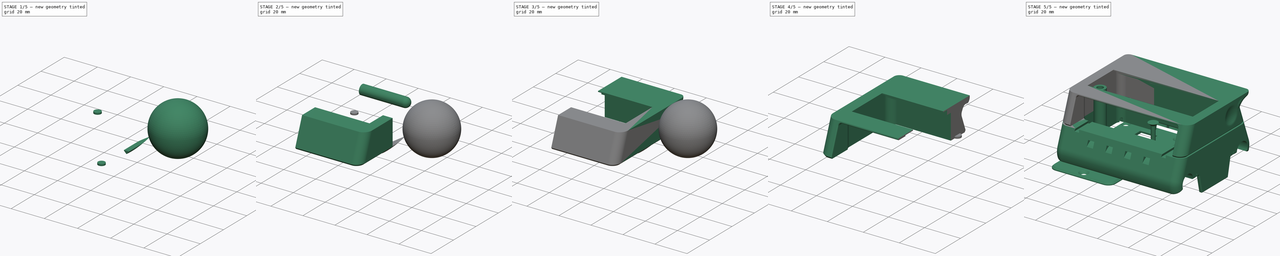
[diagram: build sequence overview — one tinted view per stage of 5, left to right]
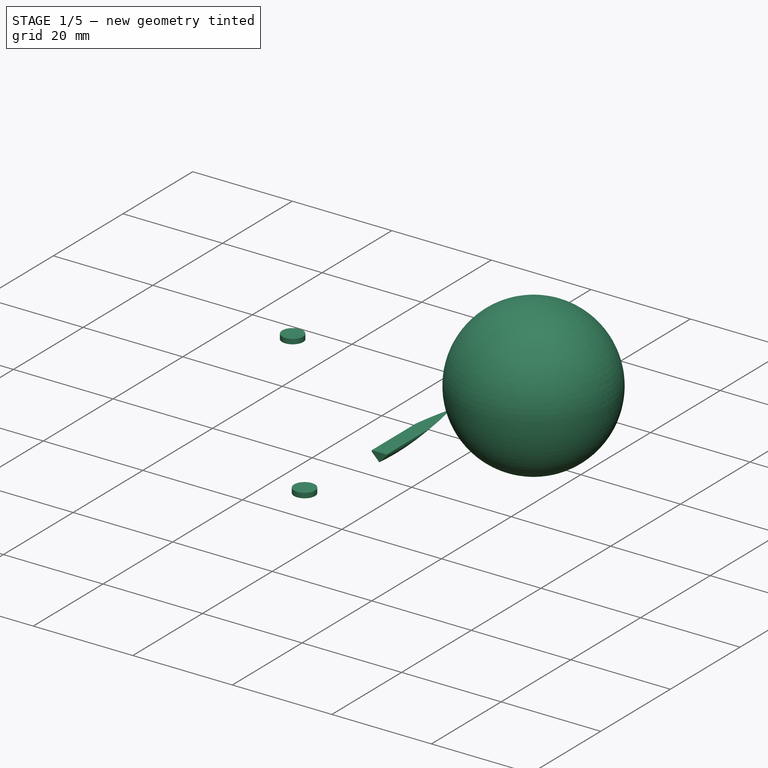
[diagram: stage 1 of 5 — iso view after this stage's code; geometry added in this stage tinted green]
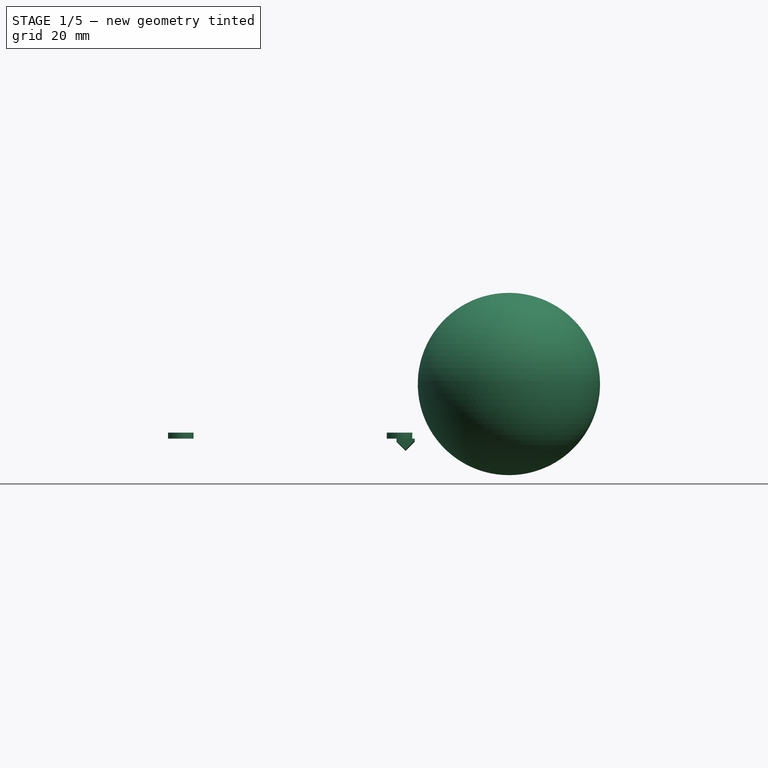
[diagram: stage 1 of 5 — front view after this stage's code; geometry added in this stage tinted green]
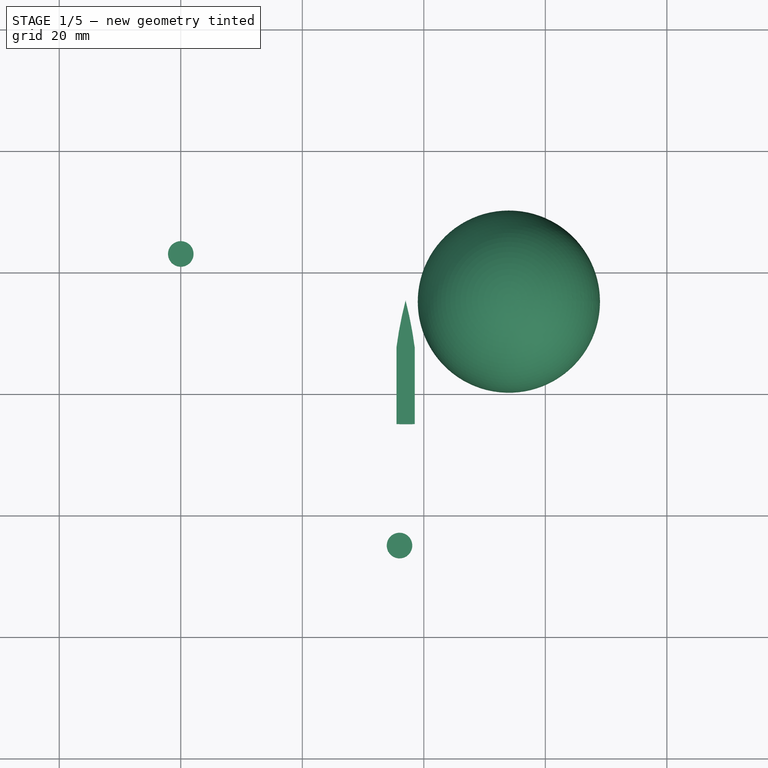
[diagram: stage 1 of 5 — top view after this stage's code; geometry added in this stage tinted green]
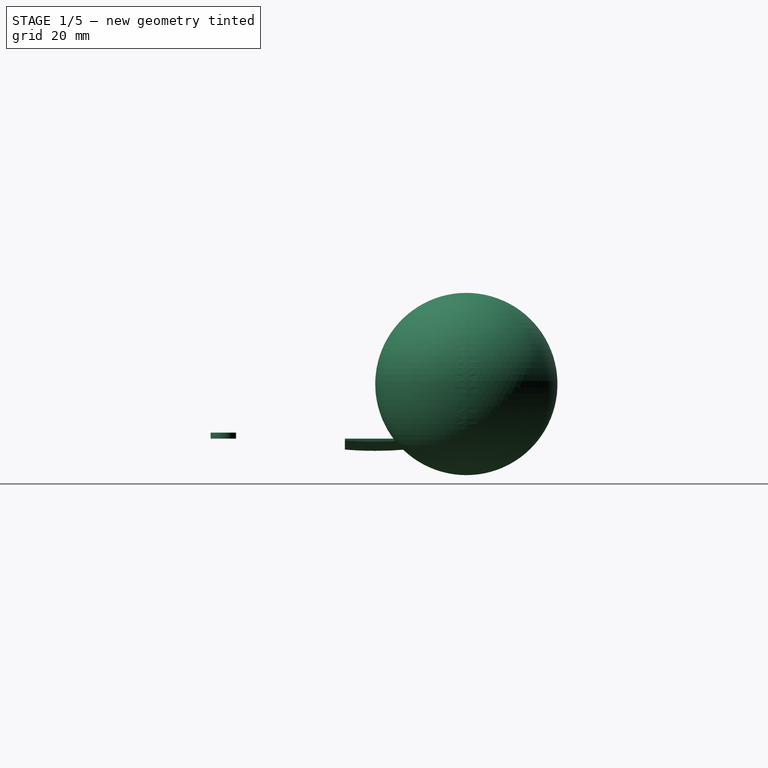
[diagram: stage 1 of 5 — right view after this stage's code; geometry added in this stage tinted green]
FCSTD DOCUMENT  (FreeCAD 0.16RUnknown)
Label: SampleTray
License: All rights reserved
LicenseURL: http://en.wikipedia.org/wiki/All_rights_reserved
objects: Part::FeaturePython×11, Sketcher::SketchObject×10, Part::Fillet×7, PartDesign::Pocket×4, Part::MultiFuse×4, Part::Cut×4, PartDesign::Pad×3, App::DocumentObjectGroup×3, PartDesign::Revolution×3, Part::Mirroring×3, Spreadsheet::Sheet×1, Part::Feature×1, Part::Chamfer×1, PartDesign::Draft×1, Part::Cylinder×1, Part::Sphere×1
note: 64 computed .brp shape members not serialized (recipe doc carries the construction recipe); baked Part::Feature solids carry a one-line shape summary decoded from their .brp

FEATURE [Part::Cylinder] Cylinder  label="Magnet"
  Angle = 360
  Height = 1
  Radius = 2.1
  expr: Radius = 2 + pars.CilLoose
FEATURE [Part::FeaturePython] Clone003  label="Clone of Magnet001"  # Draft clone (typed FeaturePython)
  Objects = -> [Cylinder]
  Placement = pos=(36,-25,0) rot=(0,0,1;0rad)
  Scale = (1,1,1)
FEATURE [Sketcher::SketchObject] Sketch024  label="SliderGrooveProfile"
  Placement = pos=(0,0,0) rot=(1,0,0;1.5708rad)
  sketch-geometry (4):
    g0: LineSegment StartX=0 StartY=0 StartZ=0 EndX=0 EndY=-60 EndZ=0
    g1: LineSegment StartX=0 StartY=-60 StartZ=0 EndX=1.5 EndY=-58.5 EndZ=0
    g2: LineSegment StartX=1.5 StartY=-58.5 StartZ=0 EndX=1.5 EndY=0 EndZ=0
    g3: LineSegment StartX=1.5 StartY=0 StartZ=0 EndX=0 EndY=0 EndZ=0
  constraints (11):
    c: Coincident(g1,g2)
    c: Coincident(g2,g3)
    c: Coincident(g3,g0)
    c: Horizontal(g3)
    c: Vertical(g0)
    c: Coincident(g0,g-1)
    c: Vertical(g2)
    c: Coincident(g1,g0)
    c: Angle(g1,g0) = 0.785398
    c: DistanceY(g0,g0) = 60
    c: DistanceX(g3,g3) = 1.5
FEATURE [PartDesign::Revolution] Revolution002  label="HalfSlider"
  Angle = 360
  Axis = (1,0,0)
  Base = (0,0,0)
  Placement = pos=(0,0,0) rot=(1,0,0;1.5708rad)
  ReferenceAxis = -> Sketch024 [H_Axis]
  Reversed = true
  Sketch = -> Sketch024
FEATURE [Part::Mirroring] Part__Mirroring006  label="HalfSlider (Mirror #4)"
  Base = (0,0,0)
  Normal = (1,0,0)
  Source = -> Revolution002
FEATURE [Part::MultiFuse] Fusion001  label="SliderCircle"
  Shapes = -> [Part__Mirroring006,Revolution002]
FEATURE [Sketcher::SketchObject] Sketch025  label="SlGrUpperCut"
  Placement = pos=(-1.5,0,0) rot=(0.57735,-0.57735,-0.57735;2.0944rad)
  Support = -> Fusion001 [Face1]
  sketch-geometry (6):
    g0: LineSegment StartX=-100 StartY=100 StartZ=0 EndX=100 EndY=100 EndZ=0
    g1: LineSegment StartX=100 StartY=100 StartZ=0 EndX=100 EndY=-58 EndZ=0
    g2: LineSegment StartX=100 StartY=-58 StartZ=0 EndX=-5 EndY=-58 EndZ=0
    g3: LineSegment StartX=-100 StartY=-66 StartZ=0 EndX=-100 EndY=100 EndZ=0
    g4: LineSegment StartX=-100 StartY=-66 StartZ=0 EndX=-5 EndY=-66 EndZ=0
    g5: LineSegment StartX=-5 StartY=-66 StartZ=0 EndX=-5 EndY=-58 EndZ=0
  constraints (18):
    c: Coincident(g0,g1)
    c: Coincident(g1,g2)
    c: Coincident(g3,g0)
    c: Horizontal(g0)
    c: Horizontal(g2)
    c: Vertical(g1)
    c: Vertical(g3)
    c: DistanceY(g0) = 100
    c: DistanceY(g1) = -58
    c: Coincident(g4,g5)
    c: Symmetric(g0,g0,g-2)
    c: DistanceX(g0,g0) = 200
    c: Coincident(g5,g2)
    c: Coincident(g3,g4)
    c: Horizontal(g4)
    c: Vertical(g5)
    c: DistanceX(g2) = -5
    c: DistanceY(g5,g5) = 8
FEATURE [PartDesign::Pocket] Pocket008003002  label="SliderGroove"
  Length = 5
  Sketch = -> Sketch025
  Type = 0
FEATURE [App::DocumentObjectGroup] Group002  label="Component_src"
  Group = -> [Revolution,Revolution001,Cylinder,Fusion001,Pocket008003002]
FEATURE [Part::FeaturePython] Clone029003  label="Clone of SliderGroove"  # Draft clone (typed FeaturePython)
  Objects = -> [Pocket008003002]
  Placement = pos=(37,0,58) rot=(0,0,1;3.14159rad)
  Scale = (1,1,1)
FEATURE [Part::Sphere] Sphere  label="FingerSphere"
  Angle1 = -90
  Angle2 = 90
  Angle3 = 360
  Placement = pos=(54,15,9) rot=(0,0,1;0rad)
  Radius = 15
FEATURE [Part::FeaturePython] Clone029004  label="Clone of Magnet"  # Draft clone (typed FeaturePython)
  Objects = -> [Cylinder]
  Placement = pos=(0,23,0) rot=(0,0,1;0rad)
  Scale = (1,1,1)
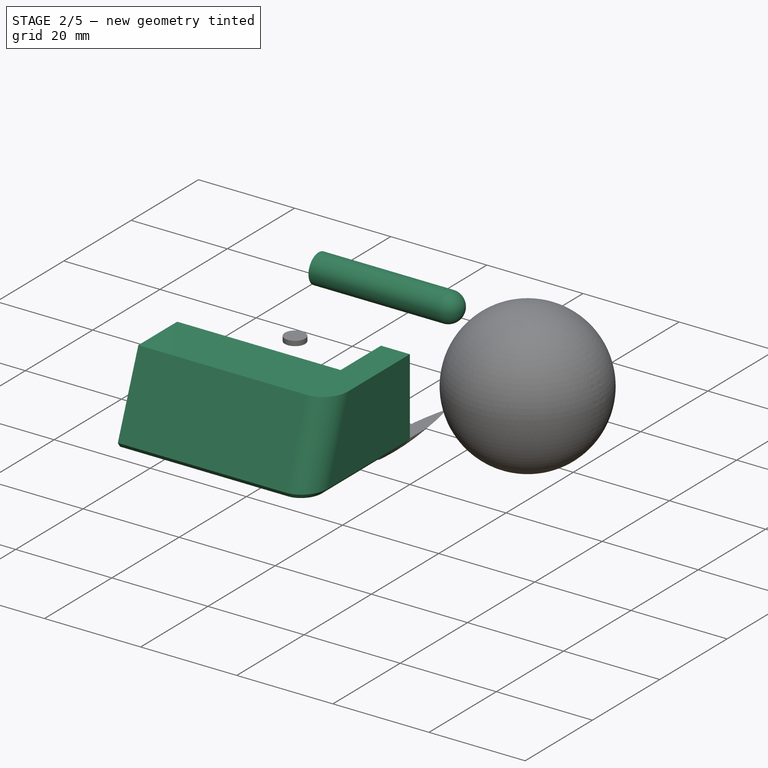
[diagram: stage 2 of 5 — iso view after this stage's code; geometry added in this stage tinted green]
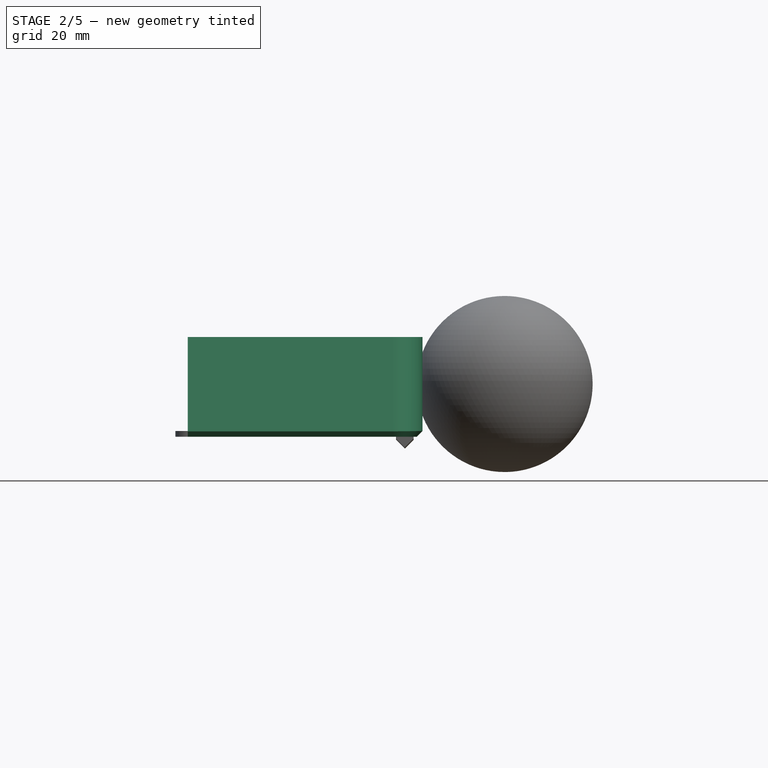
[diagram: stage 2 of 5 — front view after this stage's code; geometry added in this stage tinted green]
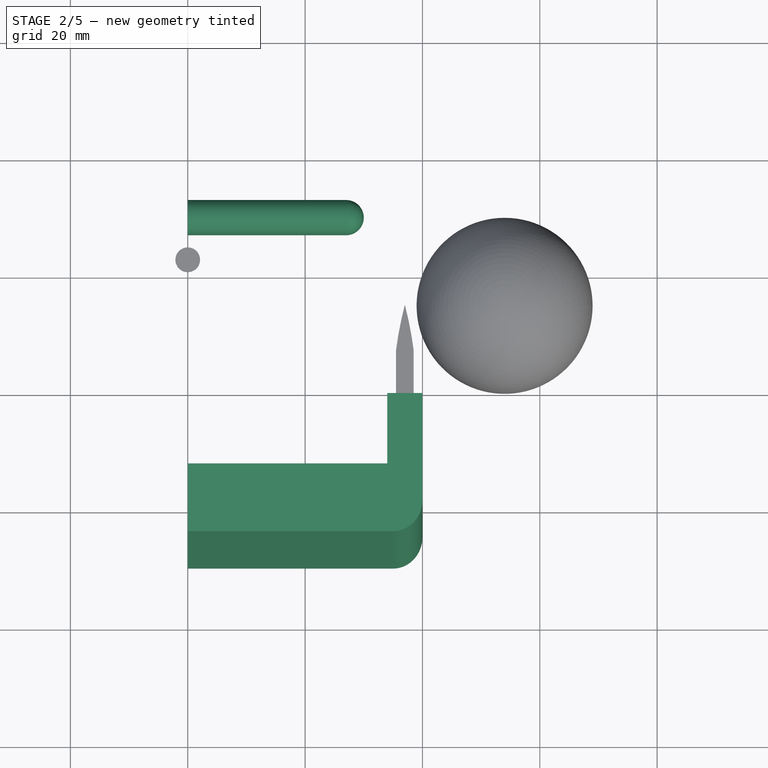
[diagram: stage 2 of 5 — top view after this stage's code; geometry added in this stage tinted green]
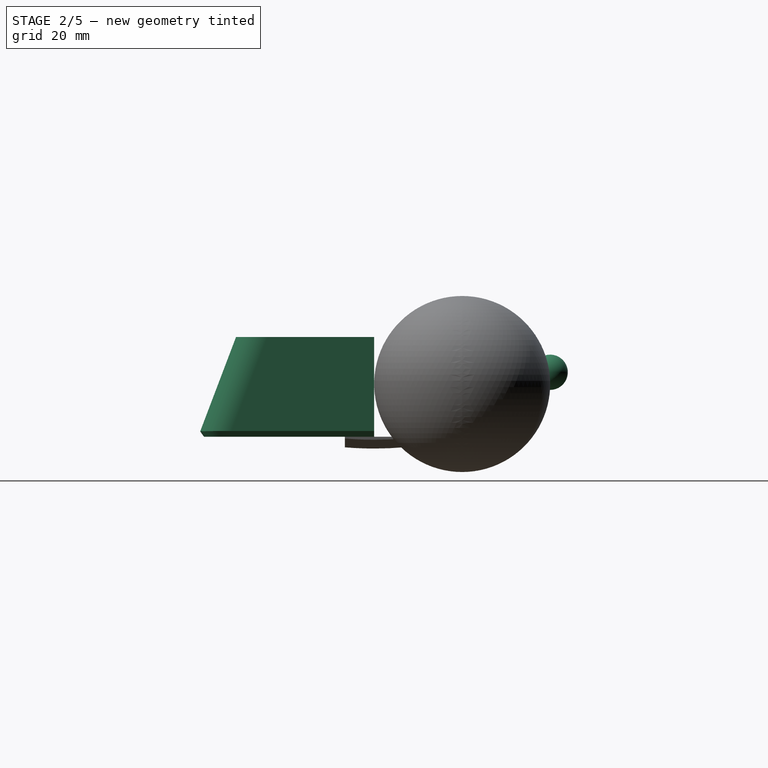
[diagram: stage 2 of 5 — right view after this stage's code; geometry added in this stage tinted green]
FEATURE [Sketcher::SketchObject] Sketch  label="Base"
  Placement = pos=(0,0,0) rot=(0.57735,0.57735,0.57735;2.0944rad)
  sketch-geometry (10):
    g0: LineSegment [constr] StartX=0 StartY=0 StartZ=0 EndX=-30 EndY=0 EndZ=0
    g1: LineSegment [constr] StartX=-30 StartY=0 StartZ=0 EndX=-34.3485 EndY=-11.4495 EndZ=0
    g2: LineSegment [constr] StartX=0 StartY=0 StartZ=0 EndX=0 EndY=-15 EndZ=0
    g3: LineSegment [constr] StartX=0 StartY=-15 StartZ=0 EndX=-25 EndY=-15 EndZ=0
    g4: LineSegment [constr] StartX=-25 StartY=-15 StartZ=0 EndX=-33.6603 EndY=-20 EndZ=0
    g5: ArcOfCircle [constr] CenterX=-25 CenterY=-15 CenterZ=0 NormalX=0 NormalY=0 NormalZ=1 Radius=10 StartAngle=2.77862 EndAngle=3.66519
    g6: LineSegment StartX=-30 StartY=0 StartZ=0 EndX=-23.5435 EndY=17 EndZ=0
    g7: LineSegment StartX=-23.5435 StartY=17 StartZ=0 EndX=0 EndY=17 EndZ=0
    g8: LineSegment StartX=0 StartY=17 StartZ=0 EndX=0 EndY=0 EndZ=0
    g9: LineSegment StartX=0 StartY=0 StartZ=0 EndX=-30 EndY=0 EndZ=0
  constraints (28):
    c: Coincident(g0,g1)
    c: Coincident(g2,g3)
    c: Coincident(g3,g4)
    c: Horizontal(g3)
    c: Horizontal(g0)
    c: Vertical(g2)
    c: Coincident(g2,g-1)
    c: Coincident(g5,g3)
    c: Coincident(g5,g1)
    c: Coincident(g5,g4)
    c: Tangent(g5,g1)
    c: Coincident(g-1,g0)
    c: DistanceX(g3) = -25
    c: DistanceY(g3) = -15
    c: Distance(g4) = 10
    c: Angle(g4) = -2.61799
    c: Angle(g1) = -1.93376
    c: Coincident(g6,g7)
    c: Coincident(g7,g8)
    c: Coincident(g8,g9)
    c: Coincident(g9,g6)
    c: Horizontal(g9)
    c: Horizontal(g7)
    c: Vertical(g8)
    c: Coincident(g8,g-1)
    c: Coincident(g6,g0)
    c: PointOnObject(g6,g1)
    c: DistanceY(g7) = 17
FEATURE [PartDesign::Pad] Pad  label="Base001"
  Length = 40
  Length2 = 100
  Placement = pos=(0,0,0) rot=(0.57735,0.57735,0.57735;2.0944rad)
  Sketch = -> Sketch
  Type = 0
FEATURE [Part::Fillet] Fillet  label="BaseFillet"
  Base = -> Pad
  Edges = 1 edges r=5: [Edge4]
FEATURE [Sketcher::SketchObject] Sketch001  label="LightSpace"
  Placement = pos=(0,0,17) rot=(0,0,1;0rad)
  Support = -> Fillet [Face5]
  sketch-geometry (4):
    g0: LineSegment StartX=-1 StartY=1 StartZ=0 EndX=34 EndY=1 EndZ=0
    g1: LineSegment StartX=34 StartY=1 StartZ=0 EndX=34 EndY=-18 EndZ=0
    g2: LineSegment StartX=34 StartY=-18 StartZ=0 EndX=-1 EndY=-18 EndZ=0
    g3: LineSegment StartX=-1 StartY=-18 StartZ=0 EndX=-1 EndY=1 EndZ=0
  constraints (12):
    c: Coincident(g0,g1)
    c: Coincident(g1,g2)
    c: Coincident(g2,g3)
    c: Coincident(g3,g0)
    c: Horizontal(g0)
    c: Horizontal(g2)
    c: Vertical(g1)
    c: Vertical(g3)
    c: DistanceX(g0) = -1
    c: DistanceY(g0) = 1
    c: DistanceX(g1) = 34
    c: DistanceY(g1) = -18
FEATURE [PartDesign::Pocket] Pocket  label="LightSpace001"
  Length = 5
  Sketch = -> Sketch001
  Type = 1
FEATURE [Part::Fillet] Fillet001  label="LightSpaceFillet"
  Base = -> Pocket
  Edges = 1 edges r=4: [Edge21]
FEATURE [App::DocumentObjectGroup] Group  label="Reference"
  Group = -> [Xcarriage_01001,Xcarriage_01,TubeLid_step1_01]
FEATURE [Part::Chamfer] Chamfer  label="FitChamfer"
  Base = -> Fillet001
  Edges = 1 edges r=1: [Edge8]
FEATURE [Sketcher::SketchObject] Sketch002  label="AntiFall"
  Placement = pos=(0,0,17) rot=(0,0,1;0rad)
  Support = -> Chamfer [Face11]
  sketch-geometry (4):
    g0: LineSegment StartX=0 StartY=-12 StartZ=0 EndX=35 EndY=-12 EndZ=0
    g1: LineSegment StartX=35 StartY=-12 StartZ=0 EndX=35 EndY=-21 EndZ=0
    g2: LineSegment StartX=35 StartY=-21 StartZ=0 EndX=0 EndY=-21 EndZ=0
    g3: LineSegment StartX=0 StartY=-21 StartZ=0 EndX=0 EndY=-12 EndZ=0
  constraints (12):
    c: Coincident(g0,g1)
    c: Coincident(g1,g2)
    c: Coincident(g2,g3)
    c: Coincident(g3,g0)
    c: Horizontal(g0)
    c: Horizontal(g2)
    c: Vertical(g1)
    c: Vertical(g3)
    c: PointOnObject(g0,g-2)
    c: DistanceY(g0) = -12
    c: DistanceX(g1) = 35
    c: DistanceY(g1) = -21
FEATURE [PartDesign::Pad] Pad001  label="AntiFall001"
  Length = 0.5
  Length2 = 100
  Reversed = true
  Sketch = -> Sketch002
  Type = 0
FEATURE [Sketcher::SketchObject] Sketch005  label="ThumbSpaceProfile"
  Placement = pos=(0,0,0) rot=(1,0,0;1.5708rad)
  sketch-geometry (4):
    g0: ArcOfCircle CenterX=27 CenterY=0 CenterZ=0 NormalX=0 NormalY=0 NormalZ=1 Radius=3 StartAngle=0 EndAngle=1.5708
    g1: LineSegment StartX=27 StartY=3 StartZ=0 EndX=0 EndY=3 EndZ=0
    g2: LineSegment StartX=0 StartY=3 StartZ=0 EndX=0 EndY=0 EndZ=0
    g3: LineSegment StartX=0 StartY=0 StartZ=0 EndX=30 EndY=0 EndZ=0
  constraints (12):
    c: Coincident(g1,g2)
    c: Coincident(g2,g3)
    c: Coincident(g3,g0)
    c: PointOnObject(g0,g3)
    c: Coincident(g0,g1)
    c: Horizontal(g1)
    c: Horizontal(g3)
    c: Vertical(g2)
    c: Coincident(g2,g-1)
    c: Tangent(g0,g1)
    c: DistanceX(g3,g3) = 30
    c: Radius(g0) = 3
FEATURE [PartDesign::Revolution] Revolution001  label="ThumbSpace"
  Angle = 360
  Axis = (1,0,0)
  Base = (0,0,0)
  Placement = pos=(0,0,0) rot=(1,0,0;1.5708rad)
  ReferenceAxis = -> Sketch005 [H_Axis]
  Sketch = -> Sketch005
FEATURE [Part::FeaturePython] Clone001  label="Clone of ThumbSpace"  # Draft clone (typed FeaturePython)
  Objects = -> [Revolution001]
  Placement = pos=(0,30,11) rot=(1,0,0;1.5708rad)
  Scale = (1,1,1)
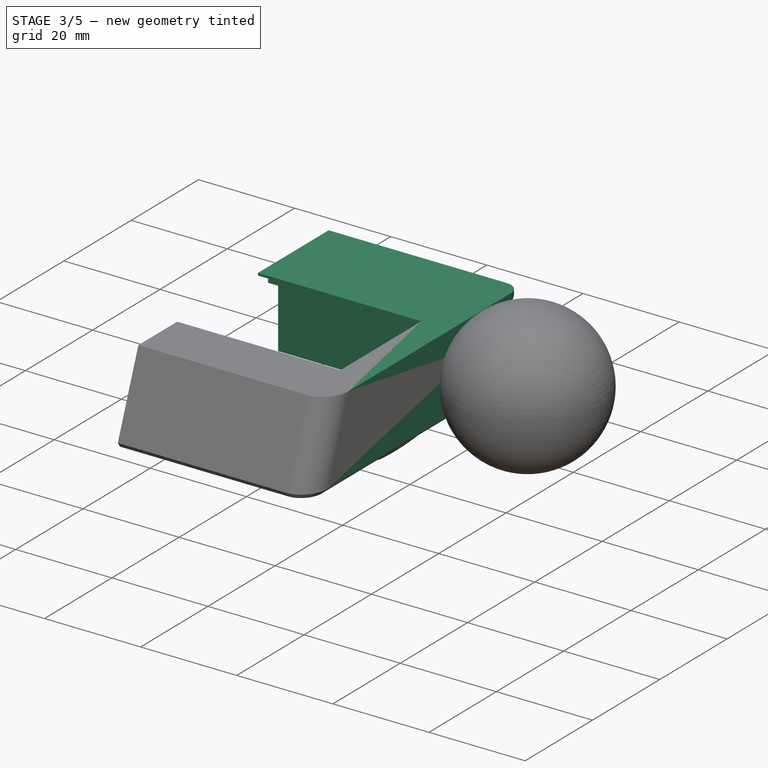
[diagram: stage 3 of 5 — iso view after this stage's code; geometry added in this stage tinted green]
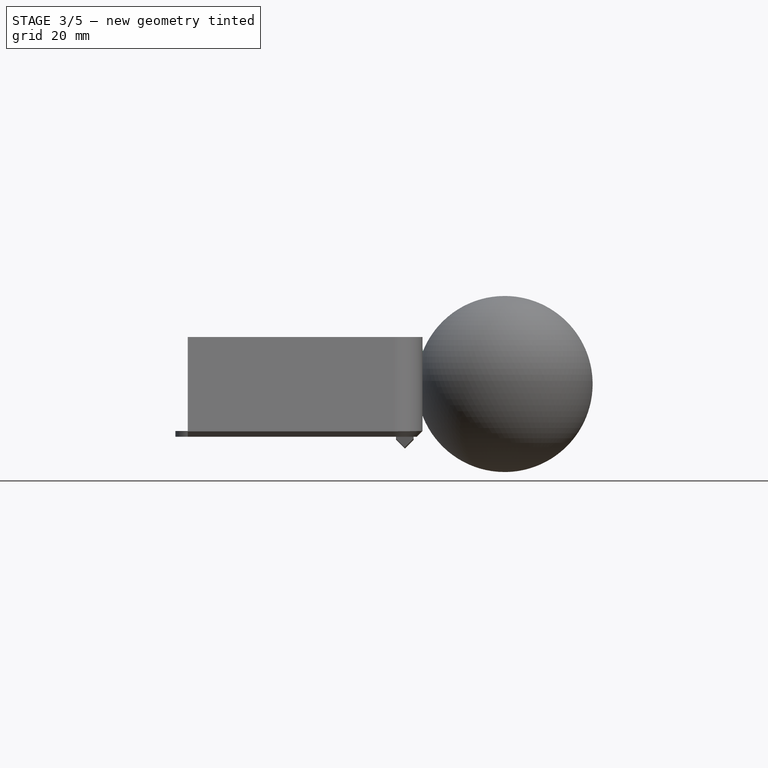
[diagram: stage 3 of 5 — front view after this stage's code; geometry added in this stage tinted green]
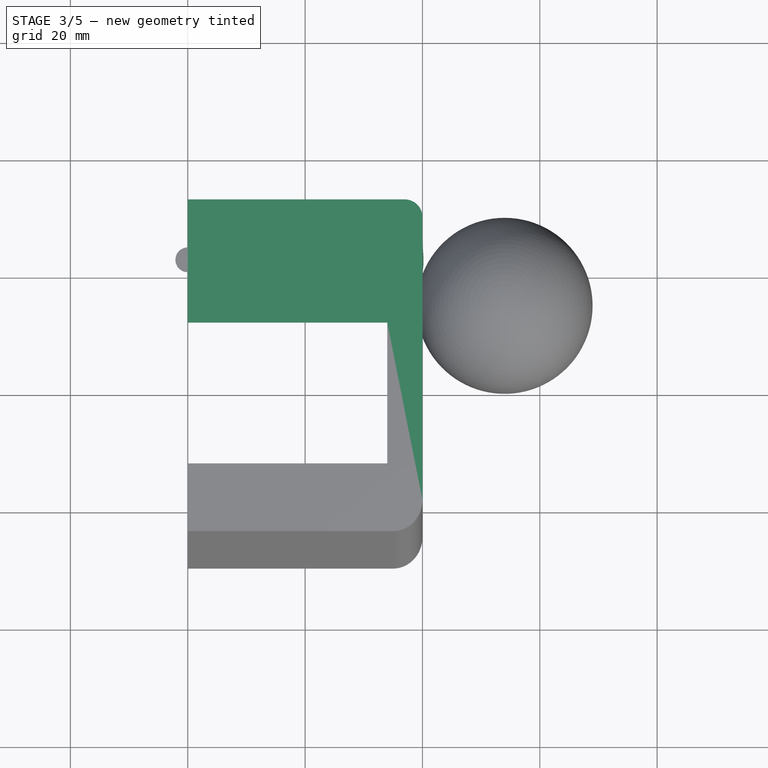
[diagram: stage 3 of 5 — top view after this stage's code; geometry added in this stage tinted green]
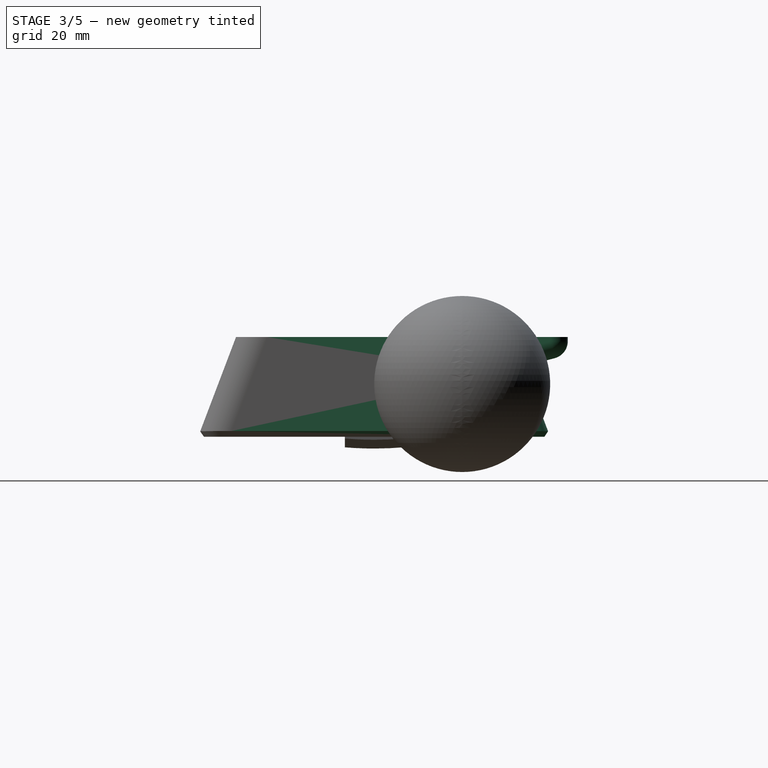
[diagram: stage 3 of 5 — right view after this stage's code; geometry added in this stage tinted green]
FEATURE [Part::FeaturePython] refine  label="refine_AntiFall001"  # WARN: FeaturePython — macro-defined, semantics opaque (R4)
  Base = -> Pad001
FEATURE [Part::Mirroring] Part__Mirroring  label="refine_AntiFall001 (Mirror #1)"
  Base = (0,0,0)
  Normal = (0,1,0)
  Source = -> refine
FEATURE [Part::MultiFuse] Fusion  label="FrontMirror"
  Shapes = -> [refine,Part__Mirroring]
FEATURE [Part::FeaturePython] refine001  label="refine_FrontMirror"  # WARN: FeaturePython — macro-defined, semantics opaque (R4)
  Base = -> Fusion
FEATURE [Sketcher::SketchObject] Sketch004  label="Holder"
  Placement = pos=(0,0,17) rot=(0,0,1;0rad)
  Support = -> refine001 [Face21]
  sketch-geometry (4):
    g0: LineSegment StartX=0 StartY=33 StartZ=0 EndX=40 EndY=33 EndZ=0
    g1: LineSegment StartX=40 StartY=33 StartZ=0 EndX=40 EndY=15 EndZ=0
    g2: LineSegment StartX=40 StartY=15 StartZ=0 EndX=0 EndY=15 EndZ=0
    g3: LineSegment StartX=0 StartY=15 StartZ=0 EndX=0 EndY=33 EndZ=0
  constraints (12):
    c: Coincident(g0,g1)
    c: Coincident(g1,g2)
    c: Coincident(g2,g3)
    c: Coincident(g3,g0)
    c: Vertical(g3)
    c: Horizontal(g0)
    c: Horizontal(g2)
    c: PointOnObject(g0,g-2)
    c: DistanceY(g0) = 33
    c: DistanceX(g0,g0) = 40
    c: DistanceY(g2) = 15
    c: Vertical(g1)
FEATURE [PartDesign::Pad] Pad002  label="Holder001"
  Length = 3
  Length2 = 100
  Reversed = true
  Sketch = -> Sketch004
  Type = 0
FEATURE [Part::FeaturePython] refine002  label="refine_Holder001"  # WARN: FeaturePython — macro-defined, semantics opaque (R4)
  Base = -> Pad002
FEATURE [PartDesign::Draft] Draft  label="HolderDraft"
  Angle = 15
  Base = -> refine002 [Face2]
  NeutralPlane = -> refine002 [Face1]
  Reversed = true
FEATURE [Part::Fillet] Fillet002  label="HolderFillet"
  Base = -> Draft
  Edges = 5 edges r=3: [Edge2,Edge4,Edge6,Edge7,Edge8]
FEATURE [Part::Cut] Cut  label="ThumbSpaceCut"
  Base = -> Fillet002
  Tool = -> Clone001
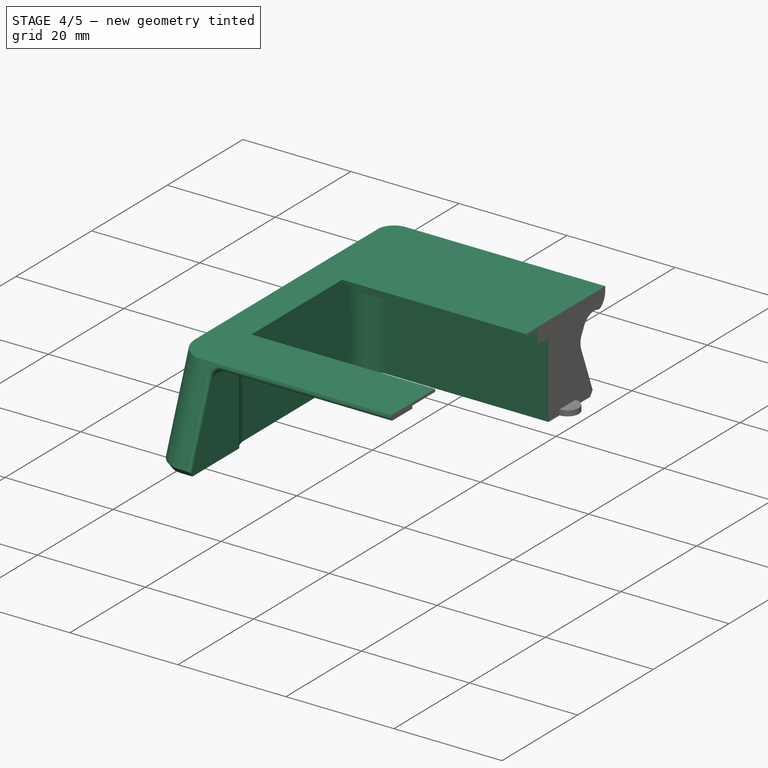
[diagram: stage 4 of 5 — iso view after this stage's code; geometry added in this stage tinted green]
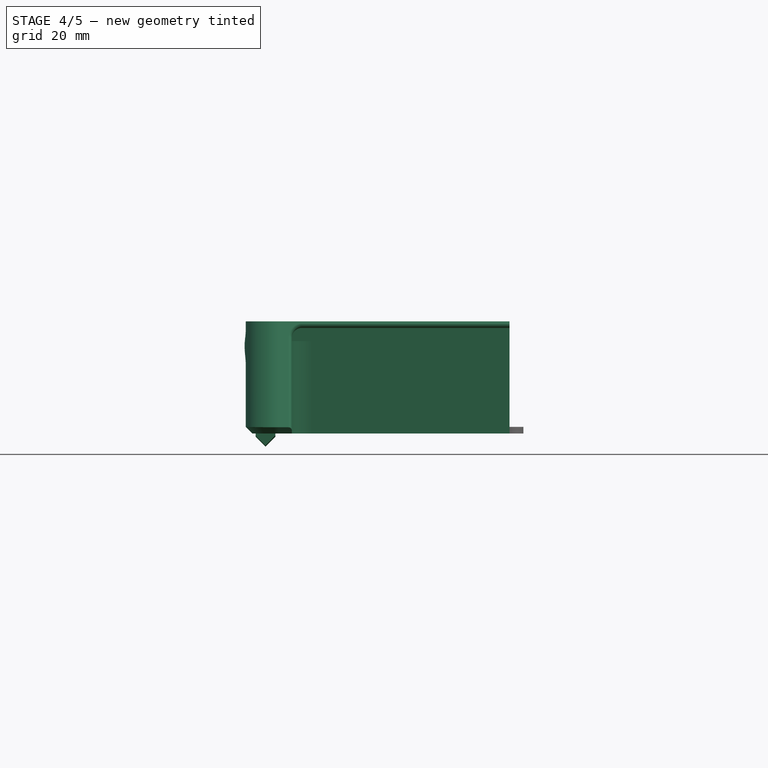
[diagram: stage 4 of 5 — front view after this stage's code; geometry added in this stage tinted green]
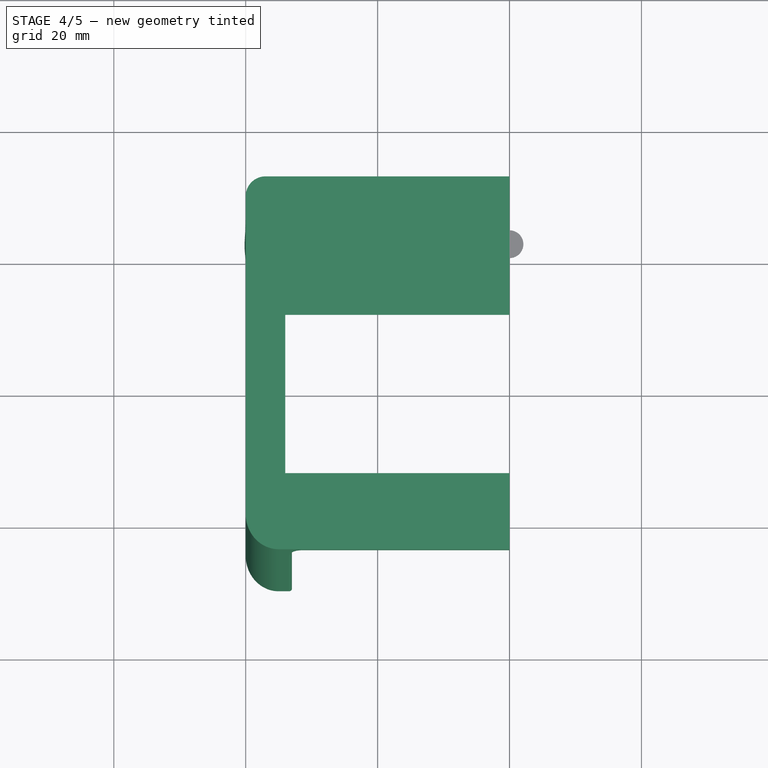
[diagram: stage 4 of 5 — top view after this stage's code; geometry added in this stage tinted green]
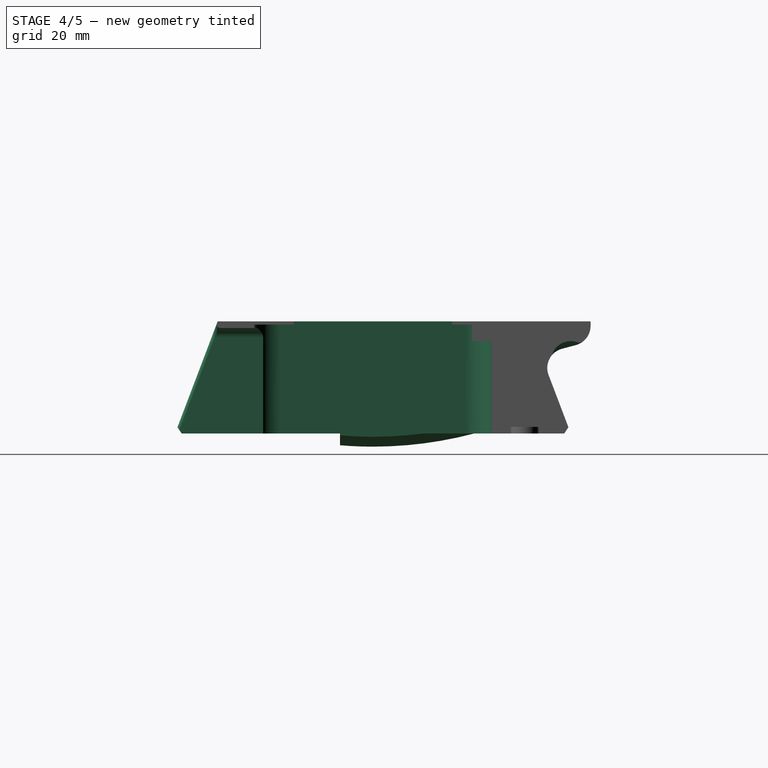
[diagram: stage 4 of 5 — right view after this stage's code; geometry added in this stage tinted green]
FEATURE [Part::Fillet] Fillet003  label="ThumbSpaceFillet"
  Base = -> Cut
  Edges = 1 edges r=1: [Edge21]
FEATURE [Part::Cut] Cut002  label="MagnetCut001"
  Base = -> Fillet003
  Tool = -> Clone003
FEATURE [Part::MultiFuse] Fusion004  label="SlideGroove"
  Shapes = -> [Cut002,Clone029003]
FEATURE [Sketcher::SketchObject] Sketch026  label="LightTubeSpace"
  Placement = pos=(0,-18,0) rot=(0,0.707107,0.707107;3.14159rad)
  Support = -> Fusion004 [Face13]
  sketch-geometry (5):
    g0: LineSegment StartX=1 StartY=-1 StartZ=0 EndX=-33 EndY=-1 EndZ=0
    g1: LineSegment StartX=-33 StartY=-1 StartZ=0 EndX=-33 EndY=14.5 EndZ=0
    g2: LineSegment StartX=-31.5 StartY=16 StartZ=0 EndX=1 EndY=16 EndZ=0
    g3: LineSegment StartX=1 StartY=16 StartZ=0 EndX=1 EndY=-1 EndZ=0
    g4: ArcOfCircle CenterX=-31.5 CenterY=14.5 CenterZ=0 NormalX=0 NormalY=0 NormalZ=1 Radius=1.5 StartAngle=1.5708 EndAngle=3.14159
  constraints (14):
    c: Coincident(g0,g1)
    c: Coincident(g2,g3)
    c: Coincident(g3,g0)
    c: Horizontal(g0)
    c: Horizontal(g2)
    c: Vertical(g1)
    c: Vertical(g3)
    c: DistanceY(g0) = -1
    c: DistanceX(g0) = 1
    c: Tangent(g1,g4) = 1.5708
    c: Tangent(g2,g4) = 1.5708
    c: DistanceY(g2) = 16
    c: DistanceX(g0) = -33
    c: Radius(g4) = 1.5
FEATURE [PartDesign::Pocket] Pocket008003003  label="LightTubeSpace001"
  Length = 30
  Midplane = true
  Sketch = -> Sketch026
  Type = 0
FEATURE [Part::Fillet] Fillet004  label="LightSpaceFillet001"
  Base = -> Pocket008003003
  Edges = 1 edges r=0.5: [Edge94]
FEATURE [Part::Cut] Cut003  label="FingerCut"
  Base = -> Fillet004
  Tool = -> Sphere
FEATURE [Part::Fillet] Fillet006  label="FingerFillet"
  Base = -> Cut003
  Edges = 1 edges r=4: [Edge109]
FEATURE [Part::Mirroring] Part__Mirroring008  label="FingerFillet (Mirror #4)"
  Base = (0,0,0)
  Normal = (1,0,0)
  Source = -> Fillet006
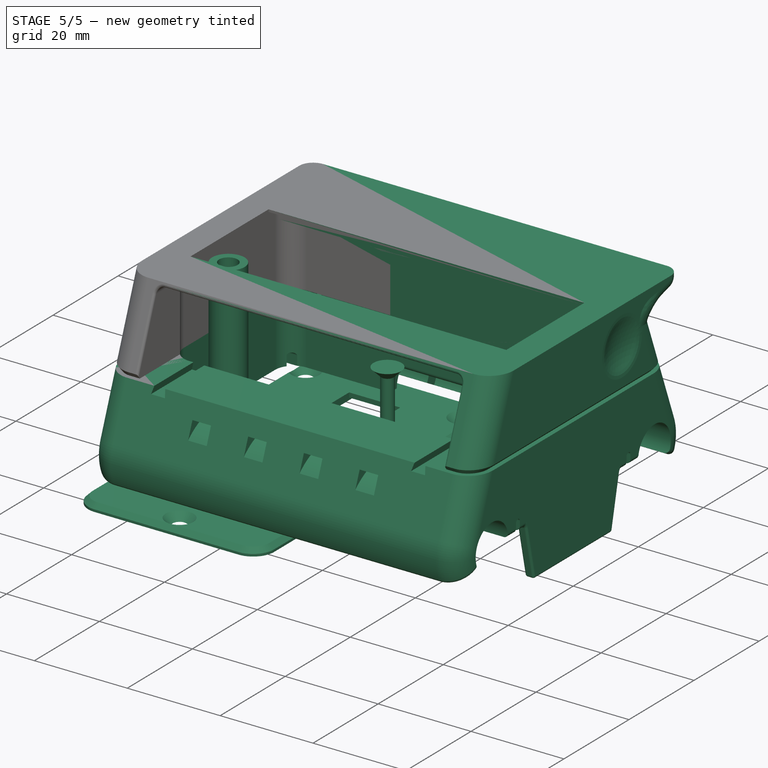
[diagram: stage 5 of 5 — iso view after this stage's code; geometry added in this stage tinted green]
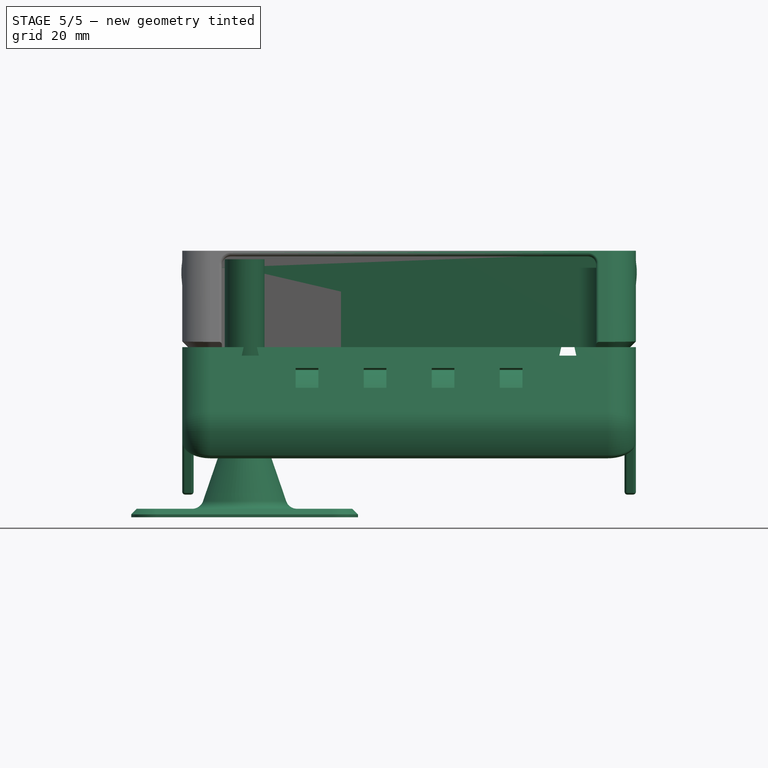
[diagram: stage 5 of 5 — front view after this stage's code; geometry added in this stage tinted green]
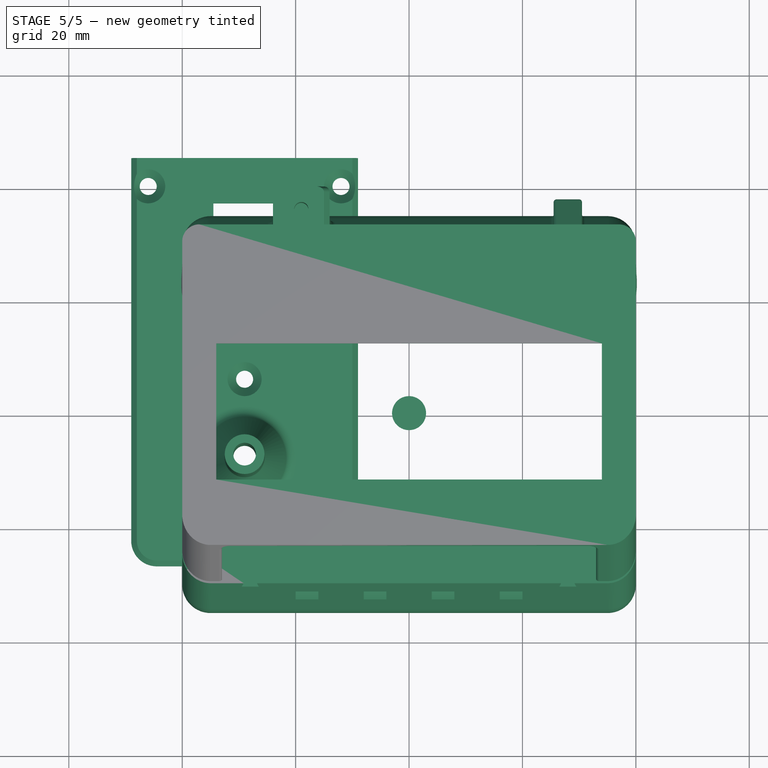
[diagram: stage 5 of 5 — top view after this stage's code; geometry added in this stage tinted green]
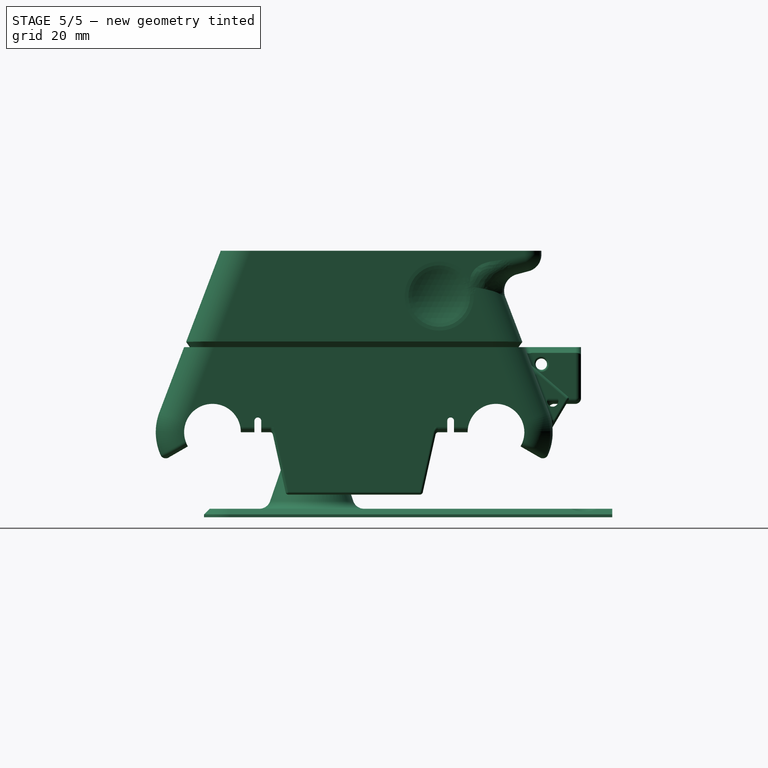
[diagram: stage 5 of 5 — right view after this stage's code; geometry added in this stage tinted green]
FEATURE [Spreadsheet::Sheet] Spreadsheet  label="pars"
  cells = A1=Bolts and Nuts; B1=Value; D1=Components; E1=Value; A2=Thread Tight Tolerance (Radius, ratio); B2(ThrTighRatio)=0.96; D2=Tight Cilinder Tolerances (Radius, mm); E2(CilTight)=0.1; A3=Thread Tight Tolerance (Radius, mm); B3(ThrTightmm)=0.15; D3=Loose Cilinder Tolerances (Radius, mm); E3(CilLoose)=0.1; A5=Nut Slot Width Clearance (mm); B5(NutWidthClearmm)=0.1; A6=Nut Slot Thickess Clearance (mm); B6(NutThickClearmm)=0.1; A13=Particular parameters; B13=Value; A14=Groove tolerance; B14(grovTol)=0.1
FEATURE [Part::Feature] Xcarriage_01001  label="Xcarriage001"
  Placement = pos=(0,0,-25) rot=(0,0,1;0rad)
  shape: bbox 81.03 x 70.59 x 44.59 mm, 241 faces (baked)
FEATURE [Part::FeaturePython] Xcarriage_01  label="Xcarriage"  # a2plus imported part (geometry in sourceFile) (typed FeaturePython)
  fixedPosition = true
  sourceFile = ./Xcarriage.fcstd
  timeLastImport = 1.52952e+09
  updateColors = true
FEATURE [Part::FeaturePython] TubeLid_step1_01  label="TubeLid"  # a2plus imported part (geometry in sourceFile) (typed FeaturePython)
  Placement = pos=(-29,-7.5,-30) rot=(0,0,1;0rad)
  fixedPosition = false
  sourceFile = ./../../../Step/Printed/MainFrame/TubeLid.step
  timeLastImport = 1.52166e+09
  updateColors = true
FEATURE [Sketcher::SketchObject] Sketch003  label="DIN7991M3 bolt"
  Placement = pos=(0,0,0) rot=(1,0,0;1.5708rad)
  sketch-geometry (5):
    g0: LineSegment StartX=0 StartY=0 StartZ=0 EndX=3 EndY=0 EndZ=0
    g1: LineSegment StartX=3 StartY=0 StartZ=0 EndX=1.3 EndY=-1.7 EndZ=0
    g2: LineSegment StartX=1.3 StartY=-1.7 StartZ=0 EndX=1.3 EndY=-14 EndZ=0
    g3: LineSegment StartX=1.3 StartY=-14 StartZ=0 EndX=0 EndY=-14 EndZ=0
    g4: LineSegment StartX=0 StartY=-14 StartZ=0 EndX=0 EndY=0 EndZ=0
  constraints (14):
    c: Coincident(g0,g1)
    c: Coincident(g1,g2)
    c: Coincident(g2,g3)
    c: Coincident(g3,g4)
    c: Coincident(g4,g0)
    c: Vertical(g4)
    c: Vertical(g2)
    c: Horizontal(g3)
    c: Horizontal(g0)
    c: Angle(g0,g1) = 0.785398
    c: Coincident(g0,g-1)
    c: DistanceX(g3,g3) = 1.3
    c: DistanceY(g4,g4) = 14
    c: DistanceX(g0,g0) = 3
FEATURE [PartDesign::Revolution] Revolution  label="DIN7991M3 bolt001"
  Angle = 360
  Axis = (0,0,1)
  Base = (0,0,0)
  Placement = pos=(0,0,0) rot=(1,0,0;1.5708rad)
  ReferenceAxis = -> Sketch003 [V_Axis]
  Reversed = true
  Sketch = -> Sketch003
FEATURE [Part::MultiFuse] Fusion005  label="SideMirror"
  Shapes = -> [Fillet006,Part__Mirroring008]
FEATURE [Part::FeaturePython] refine003  label="refine_SideMirror"  # WARN: FeaturePython — macro-defined, semantics opaque (R4)
  Base = -> Fusion005
FEATURE [Sketcher::SketchObject] Sketch027  label="AdjustBoltHole"
  Placement = pos=(0,18,0) rot=(1,0,0;1.5708rad)
  Support = -> refine003 [Face93]
  sketch-geometry (6):
    g0: LineSegment StartX=-25 StartY=0 StartZ=0 EndX=-13 EndY=0 EndZ=0
    g1: LineSegment StartX=-13 StartY=0 StartZ=0 EndX=-13 EndY=10 EndZ=0
    g2: LineSegment StartX=-14 StartY=11 StartZ=0 EndX=-24 EndY=11 EndZ=0
    g3: LineSegment StartX=-25 StartY=10 StartZ=0 EndX=-25 EndY=0 EndZ=0
    g4: ArcOfCircle CenterX=-14 CenterY=10 CenterZ=0 NormalX=0 NormalY=0 NormalZ=1 Radius=1 StartAngle=0 EndAngle=1.5708
    g5: ArcOfCircle CenterX=-24 CenterY=10 CenterZ=0 NormalX=0 NormalY=0 NormalZ=1 Radius=1 StartAngle=1.5708 EndAngle=3.14159
  constraints (16):
    c: Coincident(g0,g1)
    c: Coincident(g3,g0)
    c: Horizontal(g0)
    c: Horizontal(g2)
    c: Vertical(g1)
    c: Vertical(g3)
    c: Tangent(g2,g4) = -1.5708
    c: Tangent(g1,g4) = -1.5708
    c: Tangent(g2,g5) = -1.5708
    c: Tangent(g3,g5) = -1.5708
    c: Equal(g5,g4)
    c: PointOnObject(g0,g-1)
    c: DistanceX(g0,g0) = 12
    c: DistanceY(g0,g2) = 11
    c: DistanceX(g0) = -13
    c: Radius(g4) = 1
FEATURE [PartDesign::Pocket] Pocket008003004  label="AdjustBoltHole001"
  Length = 5
  Sketch = -> Sketch027
  Type = 1
FEATURE [Part::Fillet] Fillet005  label="AdjustBoltFillet"
  Base = -> Pocket008003004
  Edges = 6 edges r=1: [Edge30,Edge98,Edge100,Edge101,Edge191,Edge201]
FEATURE [Part::Cut] Cut004  label="CenterMagnetCut"
  Base = -> refine003
  Tool = -> Clone029004
FEATURE [App::DocumentObjectGroup] Group001  label="src"
  Group = -> [Pad,Fillet,Pocket,Fillet001,Pad001,Chamfer,Fusion,refine001,Pad002,refine002,Draft,Cut,Pocket008003003,Pocket008003004,Fillet005,Fusion004,Cut004]
FEATURE [Part::FeaturePython] Clone029005  label="SampleTray"  # Draft clone (typed FeaturePython)
  Objects = -> [Cut004]
  Scale = (1,1,1)
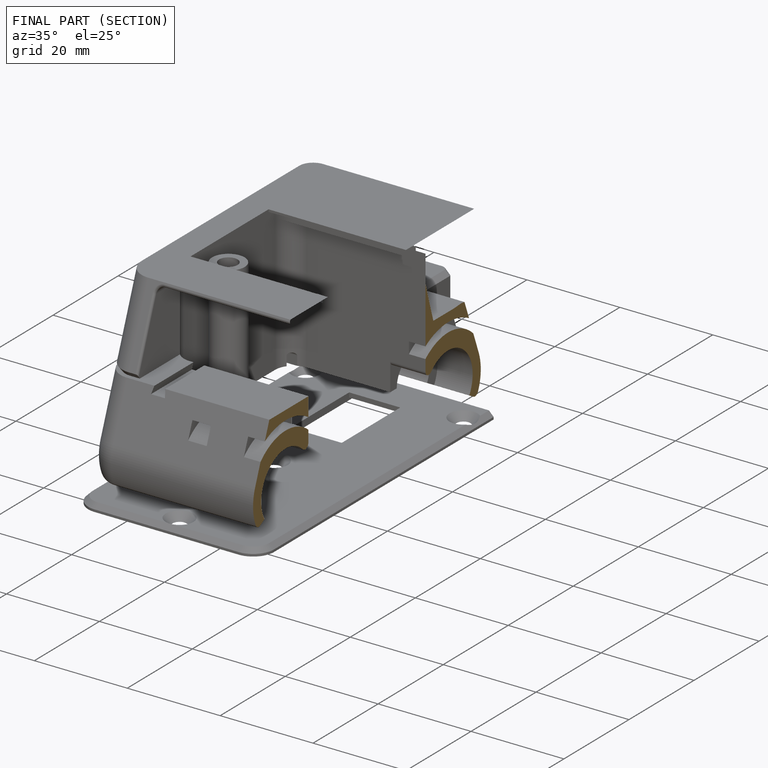
[diagram: finished part — half-section view (interior)]
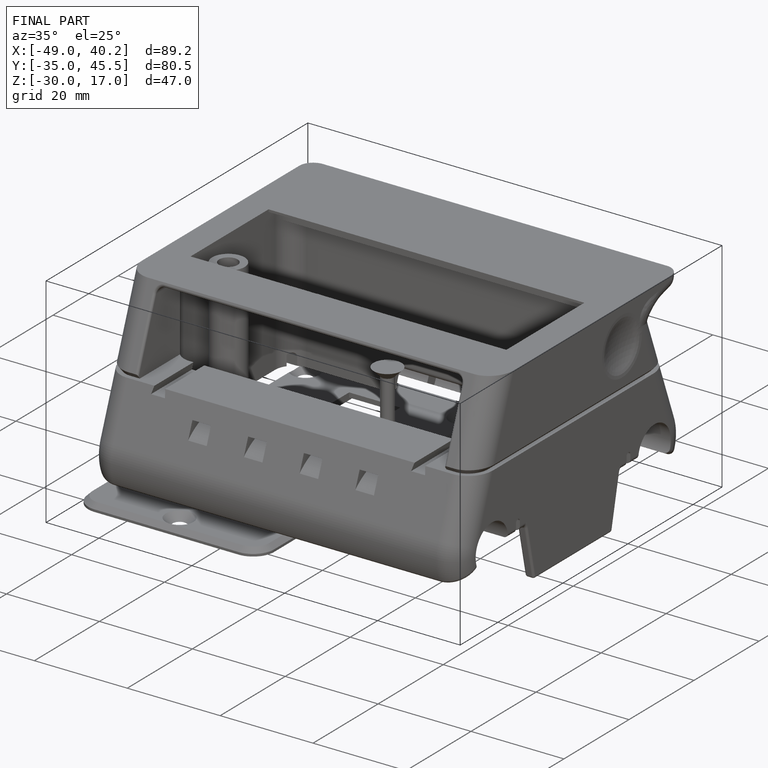
[diagram: finished part — iso view with bounding-box wireframe]
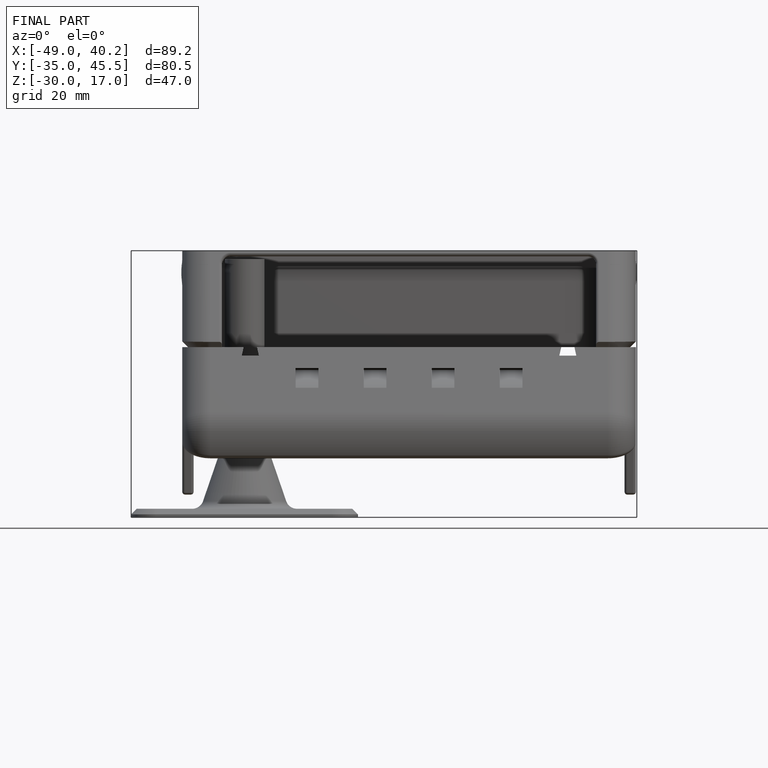
[diagram: finished part — front view with bounding-box wireframe]
